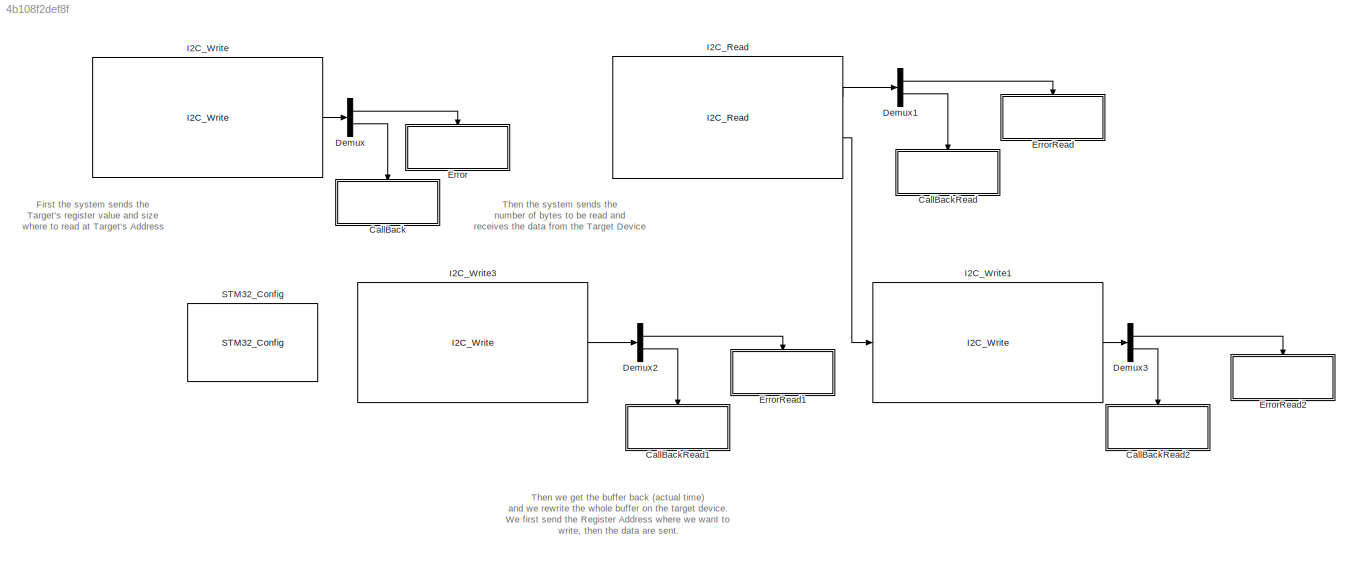
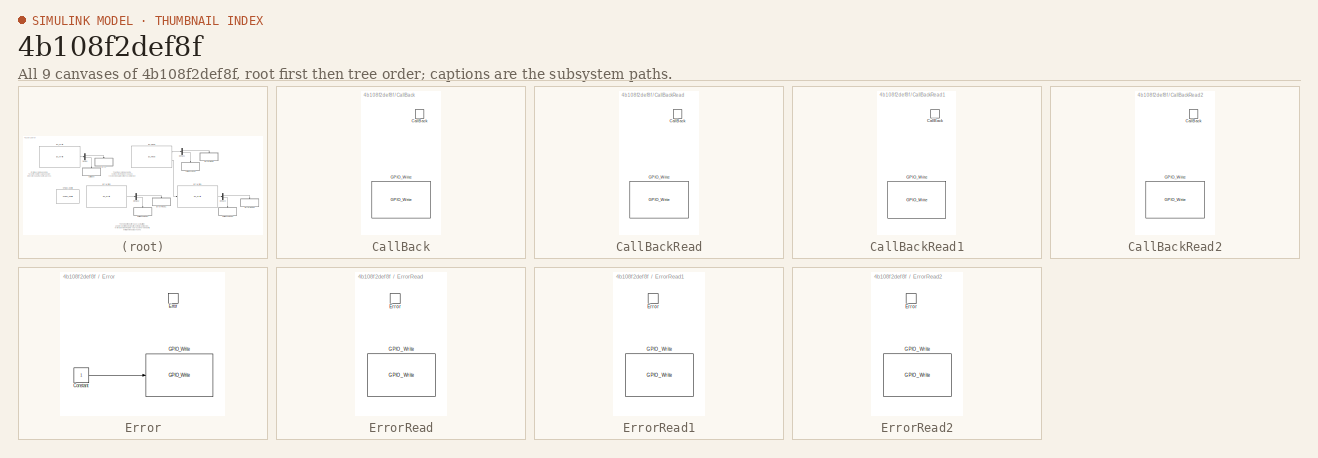
[diagram: thumbnail index - all 9 canvases of the model, root first then tree order]
MODEL slx_4b108f2def8f
KIND model
CONFIG AbsTol = auto
CONFIG EnableMultiTasking = on
CONFIG FixedStep = 0.1
CONFIG MaxStep = auto
CONFIG MinStep = auto
CONFIG RelTol = 1e-3
CONFIG SampleTimeConstraint = Unconstrained
CONFIG Solver = FixedStepDiscrete
CONFIG SolverName = FixedStepDiscrete
CONFIG StartTime = 0.0
CONFIG StopTime = 10.0
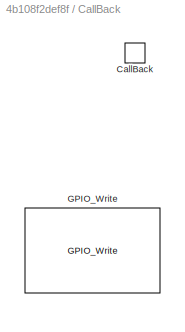
BLOCK [SubSystem] CallBack
  Ports = [0, 0, 0, 1]
  RequestExecContextInheritance = off
  TreatAsAtomicUnit = on
BLOCK [TriggerPort] CallBack/CallBack
  Ports = []
  StatesWhenEnabling = held
  TriggerType = function-call
  VariantControl = (inherit)
BLOCK [Reference] CallBack/GPIO_Write  REF=GPIO_Lib/GPIO_Write
  Ports = []
  SourceBlock = GPIO_Lib/GPIO_Write
  SourceProductName = Target Support Package - STM32 Adapter
  SourceType = GPIO_Write
BLOCK [SubSystem] CallBackRead
  Ports = [0, 0, 0, 1]
  RequestExecContextInheritance = off
  TreatAsAtomicUnit = on
BLOCK [TriggerPort] CallBackRead/CallBack
  Ports = []
  StatesWhenEnabling = held
  TriggerType = function-call
  VariantControl = (inherit)
BLOCK [Reference] CallBackRead/GPIO_Write  REF=GPIO_Lib/GPIO_Write
  Ports = []
  SourceBlock = GPIO_Lib/GPIO_Write
  SourceProductName = Target Support Package - STM32 Adapter
  SourceType = GPIO_Write
BLOCK [SubSystem] CallBackRead1
  Ports = [0, 0, 0, 1]
  RequestExecContextInheritance = off
  TreatAsAtomicUnit = on
BLOCK [TriggerPort] CallBackRead1/CallBack
  Ports = []
  StatesWhenEnabling = held
  TriggerType = function-call
  VariantControl = (inherit)
BLOCK [Reference] CallBackRead1/GPIO_Write  REF=GPIO_Lib/GPIO_Write
  Ports = []
  SourceBlock = GPIO_Lib/GPIO_Write
  SourceProductName = Target Support Package - STM32 Adapter
  SourceType = GPIO_Write
BLOCK [SubSystem] CallBackRead2
  Ports = [0, 0, 0, 1]
  RequestExecContextInheritance = off
  TreatAsAtomicUnit = on
BLOCK [TriggerPort] CallBackRead2/CallBack
  Ports = []
  StatesWhenEnabling = held
  TriggerType = function-call
  VariantControl = (inherit)
BLOCK [Reference] CallBackRead2/GPIO_Write  REF=GPIO_Lib/GPIO_Write
  Ports = []
  SourceBlock = GPIO_Lib/GPIO_Write
  SourceProductName = Target Support Package - STM32 Adapter
  SourceType = GPIO_Write
BLOCK [Demux] Demux
  DisplayOption = bar
  Outputs = 2
  Ports = [1, 2]
BLOCK [Demux] Demux1
  DisplayOption = bar
  Outputs = 2
  Ports = [1, 2]
BLOCK [Demux] Demux2
  DisplayOption = bar
  Outputs = 2
  Ports = [1, 2]
BLOCK [Demux] Demux3
  DisplayOption = bar
  Outputs = 2
  Ports = [1, 2]
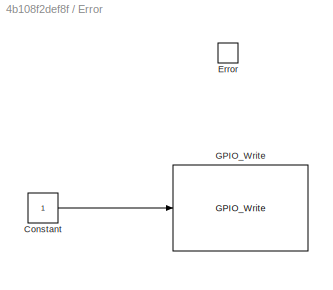
BLOCK [SubSystem] Error
  Ports = [0, 0, 0, 1]
  RequestExecContextInheritance = off
  TreatAsAtomicUnit = on
BLOCK [Constant] Error/Constant
BLOCK [TriggerPort] Error/Error
  Ports = []
  StatesWhenEnabling = held
  TriggerType = function-call
  VariantControl = (inherit)
BLOCK [Reference] Error/GPIO_Write  REF=GPIO_Lib/GPIO_Write
  Ports = [1]
  SourceBlock = GPIO_Lib/GPIO_Write
  SourceProductName = Target Support Package - STM32 Adapter
  SourceType = GPIO_Write
BLOCK [SubSystem] ErrorRead
  Ports = [0, 0, 0, 1]
  RequestExecContextInheritance = off
  TreatAsAtomicUnit = on
BLOCK [TriggerPort] ErrorRead/Error
  Ports = []
  StatesWhenEnabling = held
  TriggerType = function-call
  VariantControl = (inherit)
BLOCK [Reference] ErrorRead/GPIO_Write  REF=GPIO_Lib/GPIO_Write
  Ports = []
  SourceBlock = GPIO_Lib/GPIO_Write
  SourceProductName = Target Support Package - STM32 Adapter
  SourceType = GPIO_Write
BLOCK [SubSystem] ErrorRead1
  Ports = [0, 0, 0, 1]
  RequestExecContextInheritance = off
  TreatAsAtomicUnit = on
BLOCK [TriggerPort] ErrorRead1/Error
  Ports = []
  StatesWhenEnabling = held
  TriggerType = function-call
  VariantControl = (inherit)
BLOCK [Reference] ErrorRead1/GPIO_Write  REF=GPIO_Lib/GPIO_Write
  Ports = []
  SourceBlock = GPIO_Lib/GPIO_Write
  SourceProductName = Target Support Package - STM32 Adapter
  SourceType = GPIO_Write
BLOCK [SubSystem] ErrorRead2
  Ports = [0, 0, 0, 1]
  RequestExecContextInheritance = off
  TreatAsAtomicUnit = on
BLOCK [TriggerPort] ErrorRead2/Error
  Ports = []
  StatesWhenEnabling = held
  TriggerType = function-call
  VariantControl = (inherit)
BLOCK [Reference] ErrorRead2/GPIO_Write  REF=GPIO_Lib/GPIO_Write
  Ports = []
  SourceBlock = GPIO_Lib/GPIO_Write
  SourceProductName = Target Support Package - STM32 Adapter
  SourceType = GPIO_Write
BLOCK [Reference] I2C_Read  REF=I2C_Lib/I2C_Read
  Ports = [0, 2]
  Priority = 1
  SourceBlock = I2C_Lib/I2C_Read
  SourceProductName = Target Support Package - STM32 Adapter
  SourceType = I2C_Read
BLOCK [Reference] I2C_Write  REF=I2C_Lib/I2C_Write
  Ports = [0, 1]
  Priority = 0
  SourceBlock = I2C_Lib/I2C_Write
  SourceProductName = Target Support Package - STM32 Adapter
  SourceType = I2C_Write
BLOCK [Reference] I2C_Write1  REF=I2C_Lib/I2C_Write
  Ports = [1, 1]
  Priority = 3
  SourceBlock = I2C_Lib/I2C_Write
  SourceProductName = Target Support Package - STM32 Adapter
  SourceType = I2C_Write
BLOCK [Reference] I2C_Write3  REF=I2C_Lib/I2C_Write
  Ports = [0, 1]
  Priority = 2
  SourceBlock = I2C_Lib/I2C_Write
  SourceProductName = Target Support Package - STM32 Adapter
  SourceType = I2C_Write
BLOCK [Reference] STM32_Config  REF=STM32_Config_Lib/STM32_Config
  Ports = []
  SourceBlock = STM32_Config_Lib/STM32_Config
  SourceProductName = Target Support Package - STM32 Adapter
  SourceType = STM32_Config
ANNOTATION (root): First the system sends the Target's register value and size where to read at Target's Address
ANNOTATION (root): Then the system sends the number of bytes to be read and receives the data from the Target Device
ANNOTATION (root): Then we get the buffer back (actual time) and we rewrite the whole buffer on the target device. We first send the Register Address where we want to write, then the data are sent.
LINE Demux1:1 -> ErrorRead:trigger
LINE Demux1:2 -> CallBackRead:trigger
LINE Demux2:1 -> ErrorRead1:trigger
LINE Demux2:2 -> CallBackRead1:trigger
LINE Demux3:1 -> ErrorRead2:trigger
LINE Demux3:2 -> CallBackRead2:trigger
LINE Demux:1 -> Error:trigger
LINE Demux:2 -> CallBack:trigger
LINE Error/Constant:1 -> Error/GPIO_Write:1
LINE I2C_Read:1 -> Demux1:1
LINE I2C_Read:2 -> I2C_Write1:1
LINE I2C_Write1:1 -> Demux3:1
LINE I2C_Write3:1 -> Demux2:1
LINE I2C_Write:1 -> Demux:1
